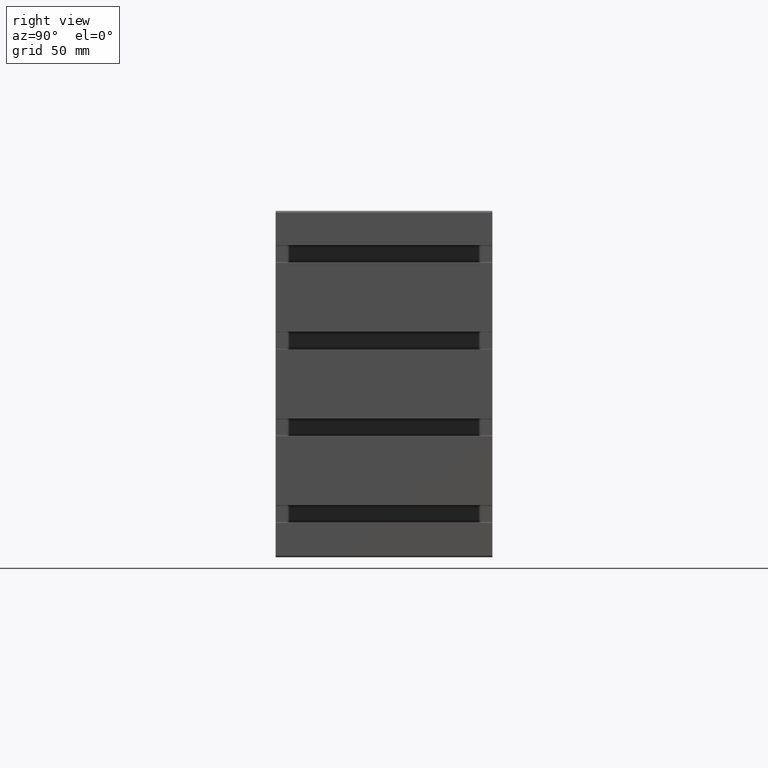
[diagram: clean part render]
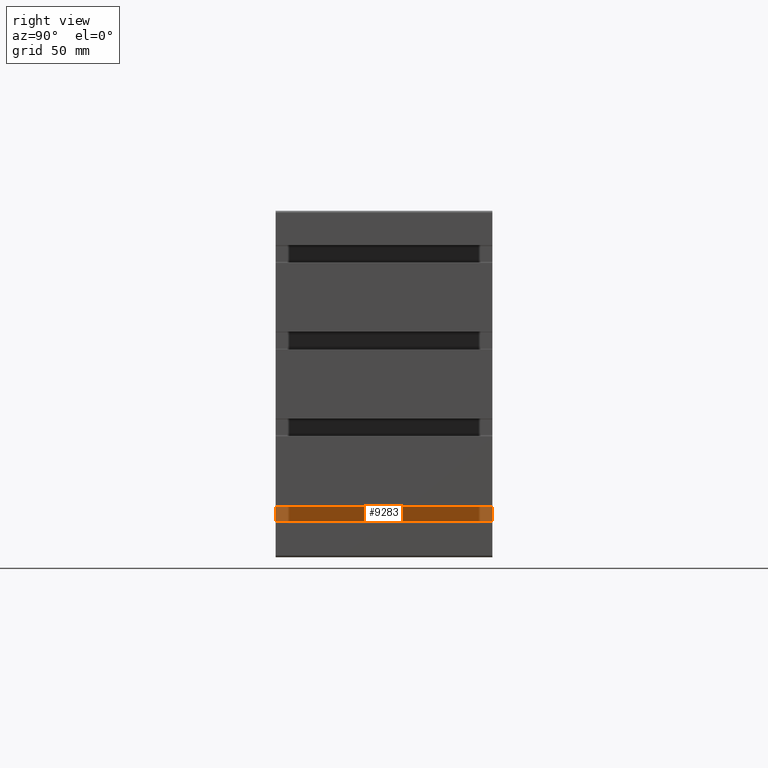
[diagram: same view with one face highlighted and labeled with its STEP entity id]
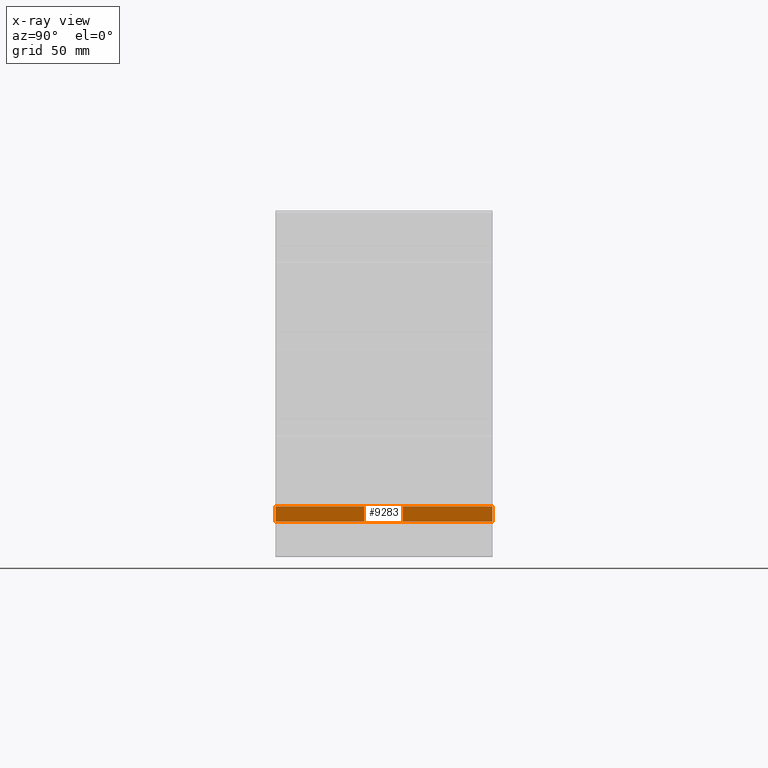
[diagram: x-ray of the same camera — body ghosted, the highlighted face saturated]
A machine part, right view. The second image highlights one B-rep face of the part: STEP entity #9283.
The next image is the same camera in x-ray: the body ghosted, the highlighted face saturated — about 0% of this face is hidden behind the body in this view.
In plain terms, the highlighted planar face has unit normal (-1, 0, 0).
Its self-contained STEP definition (entity closure, byte-faithful):
#151=PLANE('',#9972);
#498=FACE_OUTER_BOUND('',#972,.T.);
#972=EDGE_LOOP('',(#6816,#6817,#6818,#6819));
#1684=LINE('',#14500,#2654);
#1685=LINE('',#14504,#2655);
#1686=LINE('',#14506,#2656);
#1687=LINE('',#14507,#2657);
#2654=VECTOR('',#11678,10.);
#2655=VECTOR('',#11683,10.);
#2656=VECTOR('',#11684,10.);
#2657=VECTOR('',#11685,10.);
#4068=VERTEX_POINT('',#14497);
#4069=VERTEX_POINT('',#14499);
#4070=VERTEX_POINT('',#14503);
#4071=VERTEX_POINT('',#14505);
#5205=EDGE_CURVE('',#4068,#4069,#1684,.T.);
#5207=EDGE_CURVE('',#4068,#4070,#1685,.T.);
#5208=EDGE_CURVE('',#4070,#4071,#1686,.T.);
#5209=EDGE_CURVE('',#4071,#4069,#1687,.T.);
#6816=ORIENTED_EDGE('',*,*,#5205,.F.);
#6817=ORIENTED_EDGE('',*,*,#5207,.T.);
#6818=ORIENTED_EDGE('',*,*,#5208,.T.);
#6819=ORIENTED_EDGE('',*,*,#5209,.T.);
#9283=ADVANCED_FACE('',(#498),#151,.F.);
#9972=AXIS2_PLACEMENT_3D('',#14502,#11681,#11682);
#11678=DIRECTION('',(0.,1.,0.));
#11681=DIRECTION('center_axis',(-1.,0.,9.86864910809966E-16));
#11682=DIRECTION('ref_axis',(9.86864910809966E-16,0.,1.));
#11683=DIRECTION('',(-9.86864910809966E-16,0.,-1.));
#11684=DIRECTION('',(0.,1.,0.));
#11685=DIRECTION('',(9.86864910809966E-16,0.,1.));
#14497=CARTESIAN_POINT('',(127.5,-50.,-56.5104076506275));
#14499=CARTESIAN_POINT('',(127.5,50.,-56.5104076506275));
#14500=CARTESIAN_POINT('',(127.5,0.,-56.5104076506275));
#14502=CARTESIAN_POINT('Origin',(127.5,0.,-63.4895923704561));
#14503=CARTESIAN_POINT('',(127.5,-50.,-63.4895923704561));
#14504=CARTESIAN_POINT('',(127.5,-50.,-63.4895923704561));
#14505=CARTESIAN_POINT('',(127.5,50.,-63.4895923704561));
#14506=CARTESIAN_POINT('',(127.5,0.,-63.4895923704561));
#14507=CARTESIAN_POINT('',(127.5,50.,-63.4895923704561));